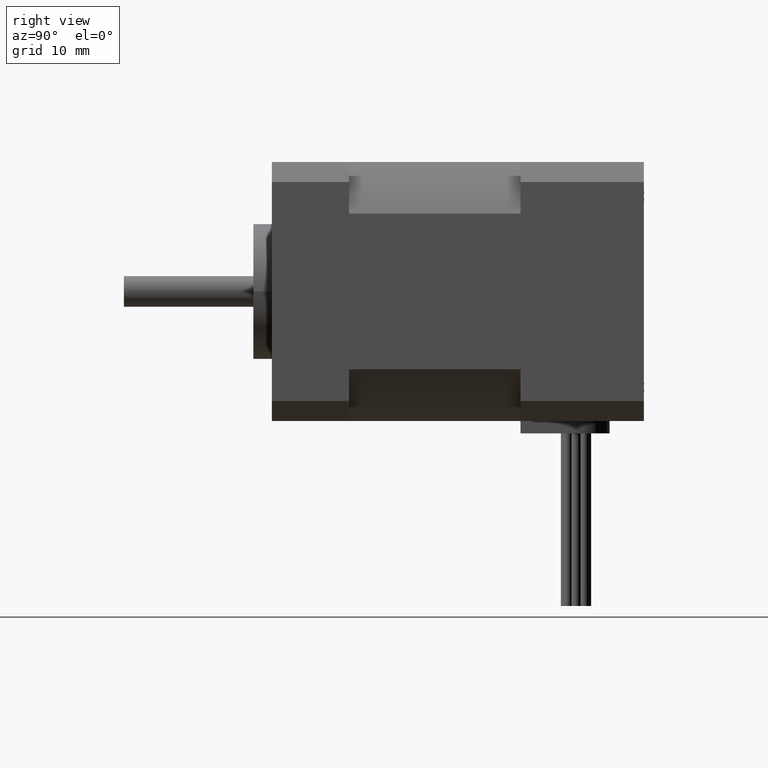
[diagram: clean part render]
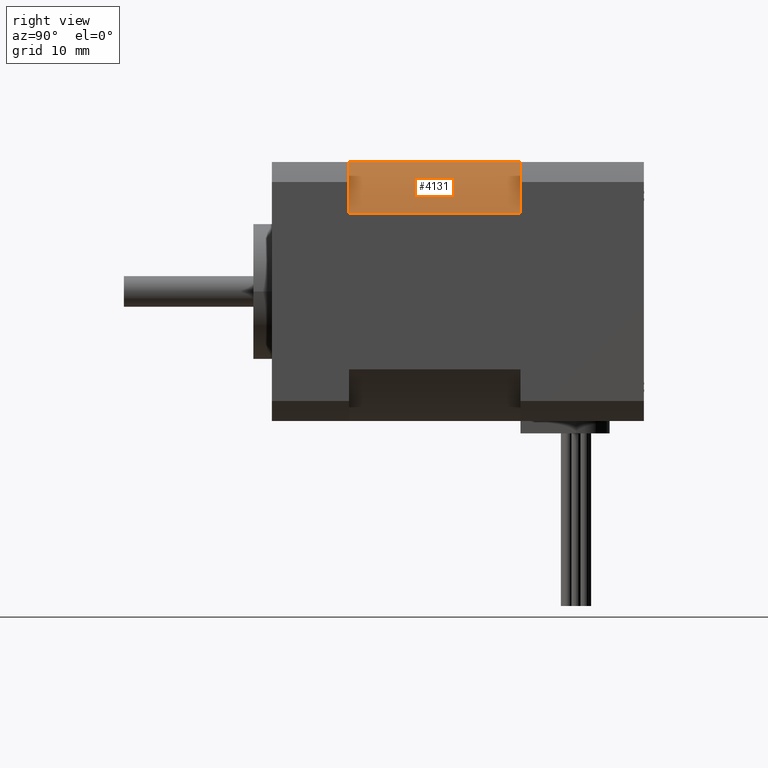
[diagram: same view with one face highlighted and labeled with its STEP entity id]
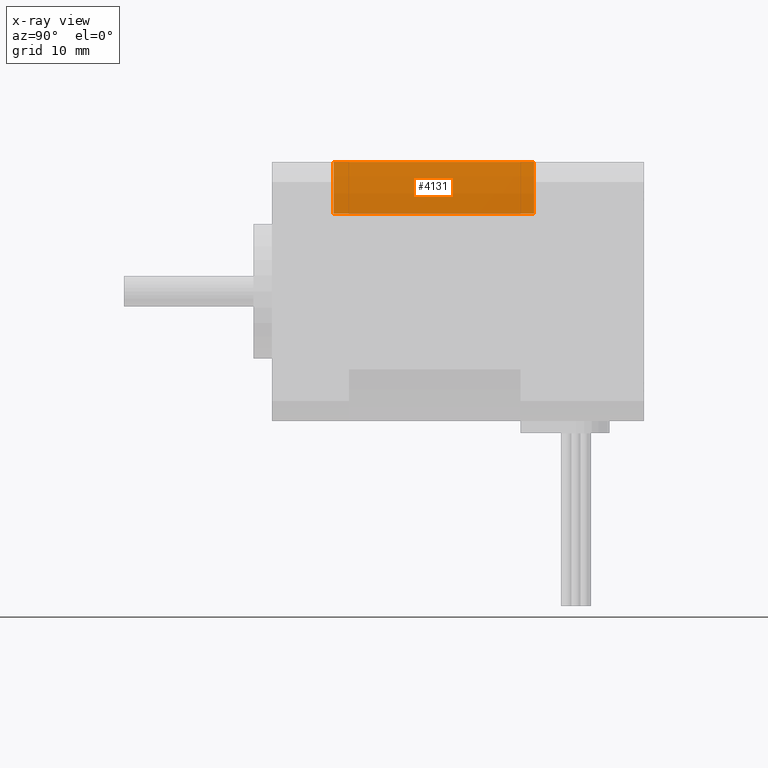
[diagram: x-ray of the same camera — body ghosted, the highlighted face saturated]
A machine part, right view. The second image highlights one B-rep face of the part: STEP entity #4131.
The next image is the same camera in x-ray: the body ghosted, the highlighted face saturated — about 0% of this face is hidden behind the body in this view.
In plain terms, the highlighted cylindrical surface (partial cylindrical patch) has radius 24.5 mm, axis along (-0, 1, -0).
Its self-contained STEP definition (entity closure, byte-faithful):
#338=LINE('',#6221,#560);
#339=LINE('',#6227,#561);
#560=VECTOR('',#4957,3.25);
#561=VECTOR('',#4964,3.25);
#865=FACE_OUTER_BOUND('',#1128,.T.);
#1128=EDGE_LOOP('',(#2692,#2693,#2694,#2695));
#1476=CIRCLE('',#4417,2.45);
#1477=CIRCLE('',#4418,2.45);
#1722=VERTEX_POINT('',#6217);
#1723=VERTEX_POINT('',#6219);
#1724=VERTEX_POINT('',#6223);
#1725=VERTEX_POINT('',#6225);
#2128=EDGE_CURVE('',#1722,#1723,#338,.T.);
#2129=EDGE_CURVE('',#1724,#1722,#1476,.T.);
#2130=EDGE_CURVE('',#1725,#1723,#1477,.T.);
#2131=EDGE_CURVE('',#1724,#1725,#339,.T.);
#2692=ORIENTED_EDGE('',*,*,#2129,.T.);
#2693=ORIENTED_EDGE('',*,*,#2128,.T.);
#2694=ORIENTED_EDGE('',*,*,#2130,.F.);
#2695=ORIENTED_EDGE('',*,*,#2131,.F.);
#3797=CYLINDRICAL_SURFACE('',#4416,2.45);
#4131=ADVANCED_FACE('',(#865),#3797,.T.);
#4416=AXIS2_PLACEMENT_3D('',#6222,#4958,#4959);
#4417=AXIS2_PLACEMENT_3D('',#6224,#4960,#4961);
#4418=AXIS2_PLACEMENT_3D('',#6226,#4962,#4963);
#4957=DIRECTION('',(-6.0767174219161E-33,1.,-1.24501532695106E-16));
#4958=DIRECTION('center_axis',(-6.0767174219161E-33,1.,-1.24501532695106E-16));
#4959=DIRECTION('ref_axis',(0.515078753637713,1.06715599452948E-16,0.857142857142857));
#4960=DIRECTION('center_axis',(-6.0767174219161E-33,1.,-1.24501532695106E-16));
#4961=DIRECTION('ref_axis',(0.515078753637713,1.06715599452948E-16,0.857142857142857));
#4962=DIRECTION('center_axis',(-6.0767174219161E-33,1.,-1.24501532695106E-16));
#4963=DIRECTION('ref_axis',(0.515078753637713,1.06715599452948E-16,0.857142857142857));
#4964=DIRECTION('',(-6.0767174219161E-33,1.,-1.24501532695106E-16));
#6217=CARTESIAN_POINT('',(1.68474004670102,-1.33735649038034,2.70974573869198));
#6219=CARTESIAN_POINT('',(1.68474004670102,1.91264350961966,2.70974573869198));
#6221=CARTESIAN_POINT('',(1.68474004670102,-1.33735649038034,2.70974573869198));
#6222=CARTESIAN_POINT('Origin',(-0.415259953298977,-1.33735649038034,1.44780279227959));
#6223=CARTESIAN_POINT('',(0.846682993113419,-1.33735649038034,3.54780279227959));
#6224=CARTESIAN_POINT('Origin',(-0.415259953298977,-1.33735649038034,1.44780279227959));
#6225=CARTESIAN_POINT('',(0.846682993113419,1.91264350961966,3.54780279227959));
#6226=CARTESIAN_POINT('Origin',(-0.415259953298977,1.91264350961966,1.44780279227959));
#6227=CARTESIAN_POINT('',(0.846682993113419,-1.33735649038034,3.54780279227959));